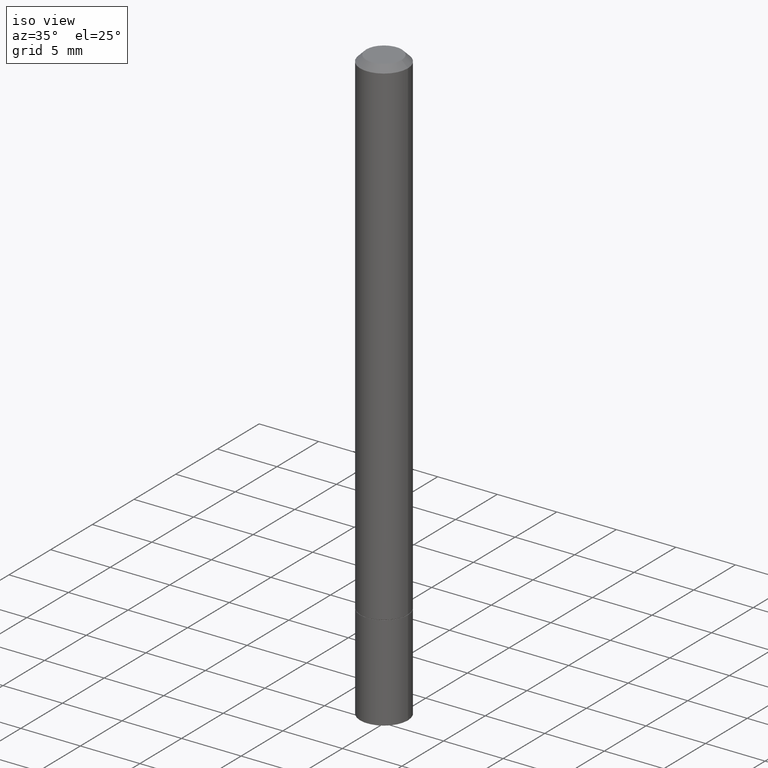
[diagram: clean part render]
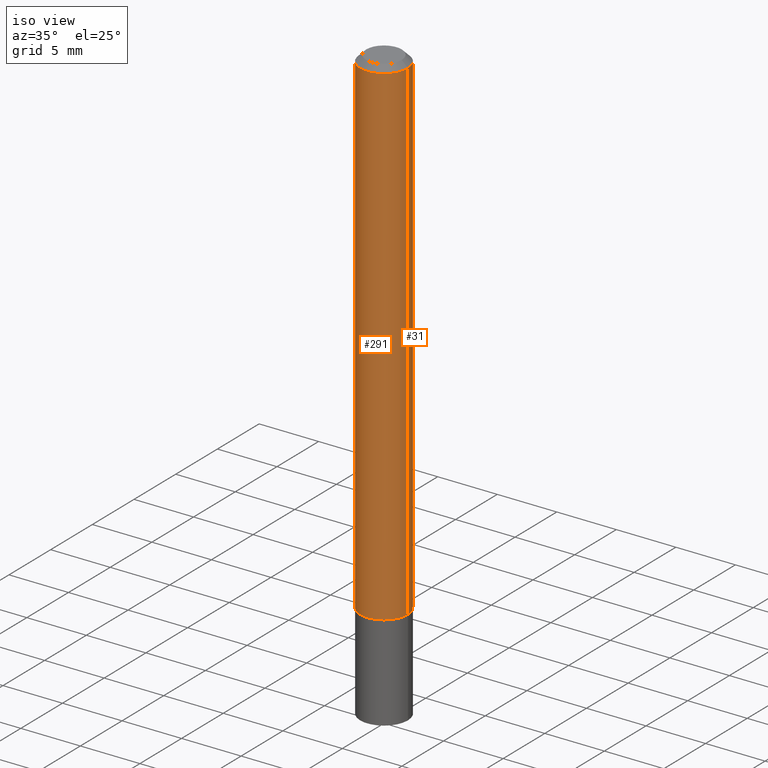
[diagram: same view with one multi-face feature highlighted, each face labeled with its STEP entity id]
A machine part, iso view. The highlighted faces form ONE feature: a constant-radius fillet chain: 2 tangent blend faces with common blend radius 2.0002 mm. The faces share edges in the B-rep.
Their STEP definitions:
[1] entity #291 (Cylinder):
#3 = EDGE_CURVE ( 'NONE', #166, #332, #105, .T. ) ;
#4 = DIRECTION ( 'NONE',  ( -2.445468806185136597E-29, 3.491481338843145583E-15, 1.000000000000000000 ) ) ;
#5 = AXIS2_PLACEMENT_3D ( 'NONE', #366, #215, #220 ) ;
#7 = CARTESIAN_POINT ( 'NONE',  ( 0.07874999999999987566, -5.499083108677926554E-16, 3.839989210939293411E-30 ) ) ;
#34 = DIRECTION ( 'NONE',  ( -2.445468806185136877E-29, 3.491481338843145188E-15, 1.000000000000000000 ) ) ;
#35 = CIRCLE ( 'NONE', #260, 0.07874999999999977851 ) ;
#36 = AXIS2_PLACEMENT_3D ( 'NONE', #205, #45, #152 ) ;
#39 = EDGE_CURVE ( 'NONE', #166, #73, #142, .T. ) ;
#45 = DIRECTION ( 'NONE',  ( -2.445468806185136597E-29, 3.491481338843145583E-15, 1.000000000000000000 ) ) ;
#66 = CARTESIAN_POINT ( 'NONE',  ( -0.07874999999999977851, 4.800786840909288642E-16, -0.02000000000000003858 ) ) ;
#73 = VERTEX_POINT ( 'NONE', #358 ) ;
#78 = ORIENTED_EDGE ( 'NONE', *, *, #3, .F. ) ;
#80 = ORIENTED_EDGE ( 'NONE', *, *, #39, .T. ) ;
#86 = LINE ( 'NONE', #7, #304 ) ;
#105 = LINE ( 'NONE', #364, #340 ) ;
#119 = EDGE_CURVE ( 'NONE', #332, #192, #35, .T. ) ;
#126 = ORIENTED_EDGE ( 'NONE', *, *, #182, .T. ) ;
#130 = DIRECTION ( 'NONE',  ( -2.445468806185136877E-29, 3.491481338843145188E-15, 1.000000000000000000 ) ) ;
#140 = CARTESIAN_POINT ( 'NONE',  ( -0.07875000000000000056, -2.360198865196497541E-15, -1.652499999999999858 ) ) ;
#142 = CIRCLE ( 'NONE', #5, 0.07875000000000000056 ) ;
#152 = DIRECTION ( 'NONE',  ( 1.000000000000000000, -6.982962677686266711E-15, 4.876176775795935793E-29 ) ) ;
#166 = VERTEX_POINT ( 'NONE', #140 ) ;
#174 = FACE_OUTER_BOUND ( 'NONE', #214, .T. ) ;
#182 = EDGE_CURVE ( 'NONE', #73, #192, #86, .T. ) ;
#192 = VERTEX_POINT ( 'NONE', #203 ) ;
#203 = CARTESIAN_POINT ( 'NONE',  ( 0.07874999999999977851, -6.100938441013696101E-16, -0.02000000000000003858 ) ) ;
#205 = CARTESIAN_POINT ( 'NONE',  ( 0.000000000000000000, 0.000000000000000000, 0.000000000000000000 ) ) ;
#214 = EDGE_LOOP ( 'NONE', ( #78, #80, #126, #237 ) ) ;
#215 = DIRECTION ( 'NONE',  ( -2.445468806185136597E-29, 3.491481338843145583E-15, 1.000000000000000000 ) ) ;
#220 = DIRECTION ( 'NONE',  ( 1.000000000000000000, -6.982962677686261977E-15, 0.000000000000000000 ) ) ;
#237 = ORIENTED_EDGE ( 'NONE', *, *, #119, .F. ) ;
#260 = AXIS2_PLACEMENT_3D ( 'NONE', #281, #4, #280 ) ;
#280 = DIRECTION ( 'NONE',  ( 1.000000000000000000, -6.982962677686265922E-15, 0.000000000000000000 ) ) ;
#281 = CARTESIAN_POINT ( 'NONE',  ( 4.890937612370282792E-31, -6.982962677686303935E-17, -0.02000000000000003858 ) ) ;
#291 = ADVANCED_FACE ( 'NONE', ( #174 ), #349, .T. ) ;
#304 = VECTOR ( 'NONE', #34, 39.37007874015748143 ) ;
#332 = VERTEX_POINT ( 'NONE', #66 ) ;
#340 = VECTOR ( 'NONE', #130, 39.37007874015748143 ) ;
#349 = CYLINDRICAL_SURFACE ( 'NONE', #36, 0.07874999999999987566 ) ;
#358 = CARTESIAN_POINT ( 'NONE',  ( 0.07875000000000000056, -6.319581223306091410E-15, -1.652499999999999858 ) ) ;
#364 = CARTESIAN_POINT ( 'NONE',  ( -0.07874999999999987566, 5.595524044110780128E-16, -3.873661383575732186E-30 ) ) ;
#366 = CARTESIAN_POINT ( 'NONE',  ( 4.041137202220937598E-29, -5.769672912438298064E-15, -1.652499999999999858 ) ) ;
[2] entity #31 (Cylinder):
#3 = EDGE_CURVE ( 'NONE', #166, #332, #105, .T. ) ;
#7 = CARTESIAN_POINT ( 'NONE',  ( 0.07874999999999987566, -5.499083108677926554E-16, 3.839989210939293411E-30 ) ) ;
#31 = ADVANCED_FACE ( 'NONE', ( #191 ), #135, .T. ) ;
#34 = DIRECTION ( 'NONE',  ( -2.445468806185136877E-29, 3.491481338843145188E-15, 1.000000000000000000 ) ) ;
#41 = CIRCLE ( 'NONE', #153, 0.07875000000000000056 ) ;
#66 = CARTESIAN_POINT ( 'NONE',  ( -0.07874999999999977851, 4.800786840909288642E-16, -0.02000000000000003858 ) ) ;
#73 = VERTEX_POINT ( 'NONE', #358 ) ;
#81 = CARTESIAN_POINT ( 'NONE',  ( 0.000000000000000000, 0.000000000000000000, 0.000000000000000000 ) ) ;
#86 = LINE ( 'NONE', #7, #304 ) ;
#89 = DIRECTION ( 'NONE',  ( 1.000000000000000000, -6.982962677686261977E-15, 0.000000000000000000 ) ) ;
#96 = AXIS2_PLACEMENT_3D ( 'NONE', #81, #104, #219 ) ;
#104 = DIRECTION ( 'NONE',  ( -2.445468806185136597E-29, 3.491481338843145583E-15, 1.000000000000000000 ) ) ;
#105 = LINE ( 'NONE', #364, #340 ) ;
#108 = DIRECTION ( 'NONE',  ( -2.445468806185136597E-29, 3.491481338843145583E-15, 1.000000000000000000 ) ) ;
#123 = EDGE_LOOP ( 'NONE', ( #322, #316, #318, #288 ) ) ;
#130 = DIRECTION ( 'NONE',  ( -2.445468806185136877E-29, 3.491481338843145188E-15, 1.000000000000000000 ) ) ;
#135 = CYLINDRICAL_SURFACE ( 'NONE', #96, 0.07874999999999987566 ) ;
#140 = CARTESIAN_POINT ( 'NONE',  ( -0.07875000000000000056, -2.360198865196497541E-15, -1.652499999999999858 ) ) ;
#153 = AXIS2_PLACEMENT_3D ( 'NONE', #252, #108, #89 ) ;
#159 = DIRECTION ( 'NONE',  ( -2.445468806185136597E-29, 3.491481338843145583E-15, 1.000000000000000000 ) ) ;
#166 = VERTEX_POINT ( 'NONE', #140 ) ;
#182 = EDGE_CURVE ( 'NONE', #73, #192, #86, .T. ) ;
#191 = FACE_OUTER_BOUND ( 'NONE', #123, .T. ) ;
#192 = VERTEX_POINT ( 'NONE', #203 ) ;
#193 = EDGE_CURVE ( 'NONE', #73, #166, #41, .T. ) ;
#203 = CARTESIAN_POINT ( 'NONE',  ( 0.07874999999999977851, -6.100938441013696101E-16, -0.02000000000000003858 ) ) ;
#219 = DIRECTION ( 'NONE',  ( 1.000000000000000000, -6.982962677686266711E-15, 4.876176775795935793E-29 ) ) ;
#233 = DIRECTION ( 'NONE',  ( 1.000000000000000000, -6.982962677686265922E-15, 0.000000000000000000 ) ) ;
#234 = CIRCLE ( 'NONE', #242, 0.07874999999999977851 ) ;
#242 = AXIS2_PLACEMENT_3D ( 'NONE', #352, #159, #233 ) ;
#252 = CARTESIAN_POINT ( 'NONE',  ( 4.041137202220937598E-29, -5.769672912438298064E-15, -1.652499999999999858 ) ) ;
#288 = ORIENTED_EDGE ( 'NONE', *, *, #182, .F. ) ;
#298 = EDGE_CURVE ( 'NONE', #192, #332, #234, .T. ) ;
#304 = VECTOR ( 'NONE', #34, 39.37007874015748143 ) ;
#316 = ORIENTED_EDGE ( 'NONE', *, *, #3, .T. ) ;
#318 = ORIENTED_EDGE ( 'NONE', *, *, #298, .F. ) ;
#322 = ORIENTED_EDGE ( 'NONE', *, *, #193, .T. ) ;
#332 = VERTEX_POINT ( 'NONE', #66 ) ;
#340 = VECTOR ( 'NONE', #130, 39.37007874015748143 ) ;
#352 = CARTESIAN_POINT ( 'NONE',  ( 4.890937612370282792E-31, -6.982962677686303935E-17, -0.02000000000000003858 ) ) ;
#358 = CARTESIAN_POINT ( 'NONE',  ( 0.07875000000000000056, -6.319581223306091410E-15, -1.652499999999999858 ) ) ;
#364 = CARTESIAN_POINT ( 'NONE',  ( -0.07874999999999987566, 5.595524044110780128E-16, -3.873661383575732186E-30 ) ) ;